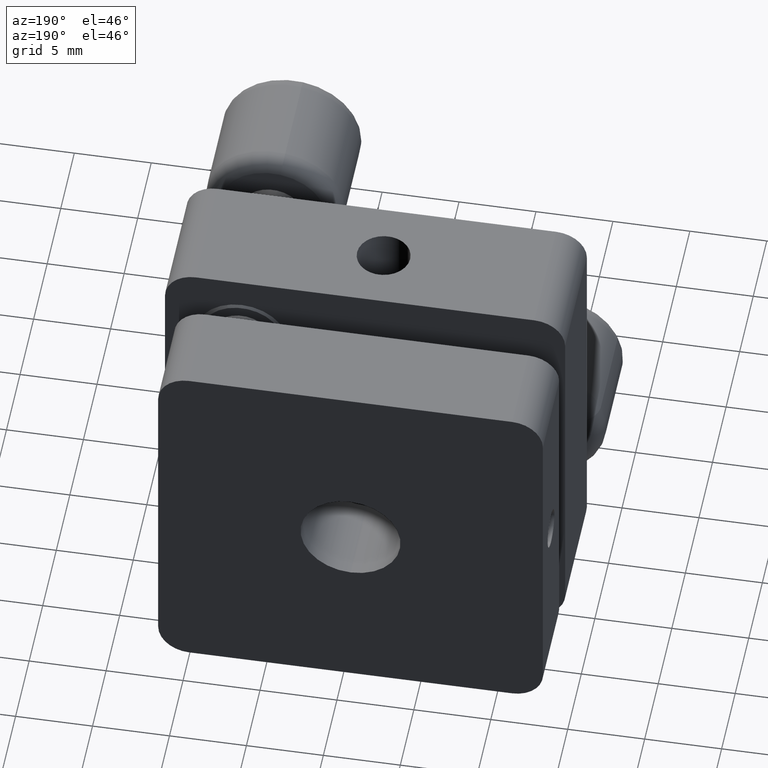
[diagram: clean part render]
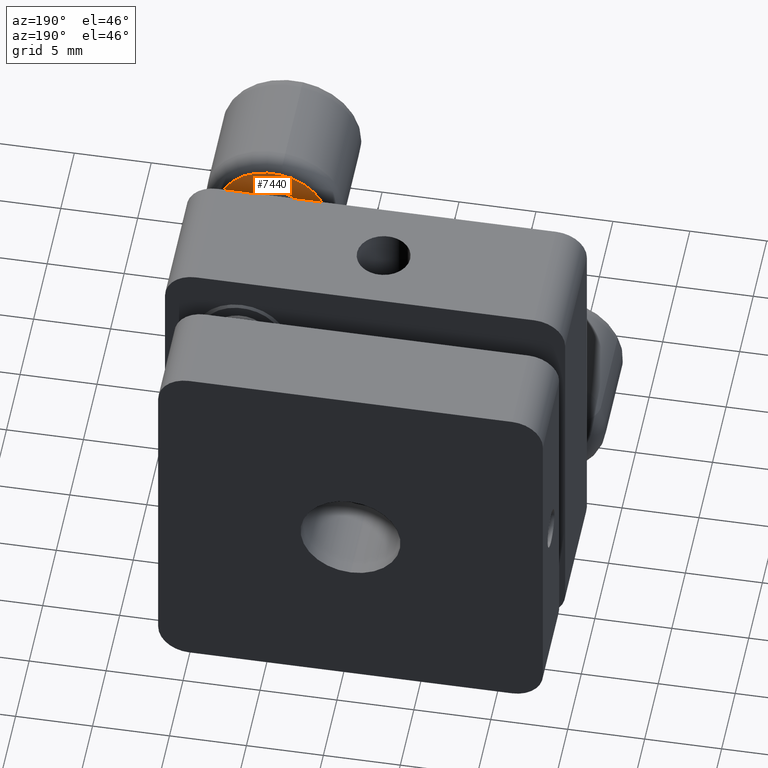
[diagram: same view with one face highlighted and labeled with its STEP entity id]
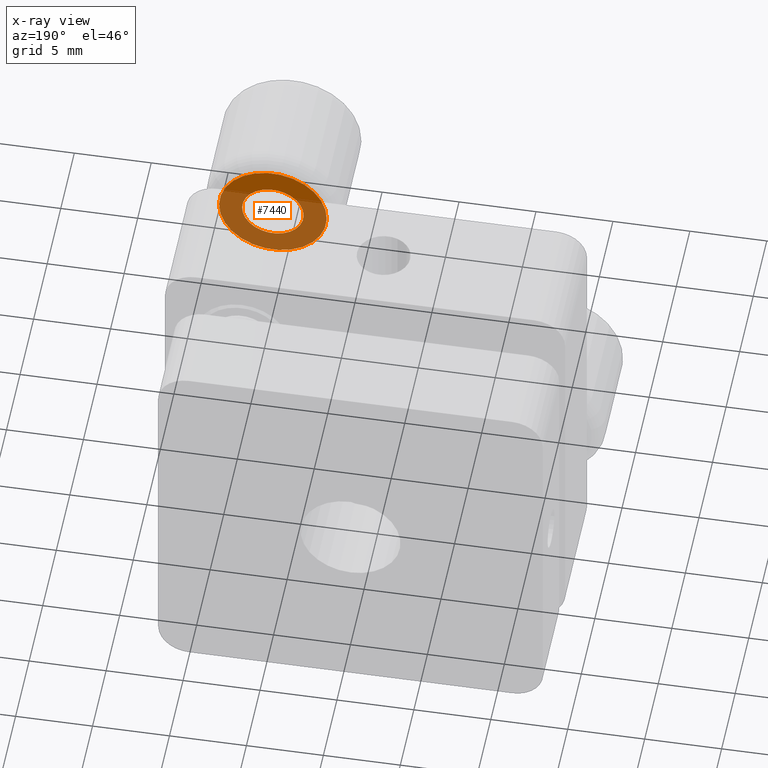
[diagram: x-ray of the same camera — body ghosted, the highlighted face saturated]
A machine part, auxiliary view. The second image highlights one B-rep face of the part: STEP entity #7440.
The next image is the same camera in x-ray: the body ghosted, the highlighted face saturated — about 66% of this face is hidden behind the body in this view.
In plain terms, the highlighted planar face has unit normal (0, 1, 0).
Its self-contained STEP definition (entity closure, byte-faithful):
#194 = AXIS2_PLACEMENT_3D ( 'NONE', #7903, #2808, #8762 ) ;
#332 = EDGE_CURVE ( 'NONE', #418, #3526, #8013, .T. ) ;
#418 = VERTEX_POINT ( 'NONE', #6206 ) ;
#420 = CIRCLE ( 'NONE', #9095, 3.500000000000006200 ) ;
#694 = EDGE_CURVE ( 'NONE', #9178, #7379, #420, .T. ) ;
#928 = AXIS2_PLACEMENT_3D ( 'NONE', #7559, #2469, #8405 ) ;
#1691 = CIRCLE ( 'NONE', #928, 2.000000000000002200 ) ;
#1994 = CARTESIAN_POINT ( 'NONE',  ( 7.774155478565033300, -15.49123321784737700, 33.50000000000004300 ) ) ;
#2309 = EDGE_LOOP ( 'NONE', ( #5864, #8565 ) ) ;
#2323 = AXIS2_PLACEMENT_3D ( 'NONE', #1994, #7930, #2835 ) ;
#2380 = DIRECTION ( 'NONE',  ( 1.238150394019946100E-016, 1.000000000000000000, 5.645428605362232300E-018 ) ) ;
#2386 = EDGE_CURVE ( 'NONE', #3526, #418, #1691, .T. ) ;
#2469 = DIRECTION ( 'NONE',  ( -1.238150394019946100E-016, -1.000000000000000000, -5.645428605362232300E-018 ) ) ;
#2808 = DIRECTION ( 'NONE',  ( -1.238150394019946100E-016, -1.000000000000000000, -5.645428605362232300E-018 ) ) ;
#2835 = DIRECTION ( 'NONE',  ( 0.1407572195371293300, 0.0000000000000000000, -0.9900441430300854800 ) ) ;
#3509 = CARTESIAN_POINT ( 'NONE',  ( 7.140747990647958500, -15.49123321784737500, 37.95519864363543400 ) ) ;
#3526 = VERTEX_POINT ( 'NONE', #7032 ) ;
#4379 = DIRECTION ( 'NONE',  ( 0.1407572195371293000, -1.183863715747114700E-017, -0.9900441430300854800 ) ) ;
#4596 = FACE_OUTER_BOUND ( 'NONE', #8913, .T. ) ;
#5093 = ORIENTED_EDGE ( 'NONE', *, *, #5703, .T. ) ;
#5703 = EDGE_CURVE ( 'NONE', #7379, #9178, #10825, .T. ) ;
#5864 = ORIENTED_EDGE ( 'NONE', *, *, #2386, .T. ) ;
#5964 = ORIENTED_EDGE ( 'NONE', *, *, #694, .T. ) ;
#6206 = CARTESIAN_POINT ( 'NONE',  ( 8.055669917639292500, -15.49123321784737500, 31.51991171393986900 ) ) ;
#6870 = FACE_BOUND ( 'NONE', #2309, .T. ) ;
#7032 = CARTESIAN_POINT ( 'NONE',  ( 7.492641039490775000, -15.49123321784737500, 35.48008828606021600 ) ) ;
#7379 = VERTEX_POINT ( 'NONE', #10158 ) ;
#7440 = ADVANCED_FACE ( 'NONE', ( #4596, #6870 ), #8557, .T. ) ;
#7462 = CARTESIAN_POINT ( 'NONE',  ( 7.774155478565033300, -15.49123321784737700, 33.50000000000004300 ) ) ;
#7559 = CARTESIAN_POINT ( 'NONE',  ( 7.774155478565033300, -15.49123321784737500, 33.50000000000004300 ) ) ;
#7903 = CARTESIAN_POINT ( 'NONE',  ( 7.774155478565033300, -15.49123321784737500, 33.50000000000004300 ) ) ;
#7930 = DIRECTION ( 'NONE',  ( 1.238150394019946100E-016, 1.000000000000000000, 5.645428605362232300E-018 ) ) ;
#8013 = CIRCLE ( 'NONE', #194, 2.000000000000002200 ) ;
#8322 = DIRECTION ( 'NONE',  ( 0.1407572195371293300, 0.0000000000000000000, -0.9900441430300854800 ) ) ;
#8405 = DIRECTION ( 'NONE',  ( -0.1407572195371292200, 0.0000000000000000000, 0.9900441430300855900 ) ) ;
#8557 = PLANE ( 'NONE',  #9152 ) ;
#8565 = ORIENTED_EDGE ( 'NONE', *, *, #332, .T. ) ;
#8762 = DIRECTION ( 'NONE',  ( -0.1407572195371292200, 0.0000000000000000000, 0.9900441430300855900 ) ) ;
#8913 = EDGE_LOOP ( 'NONE', ( #5093, #5964 ) ) ;
#9095 = AXIS2_PLACEMENT_3D ( 'NONE', #7462, #2380, #8322 ) ;
#9152 = AXIS2_PLACEMENT_3D ( 'NONE', #3509, #9449, #4379 ) ;
#9178 = VERTEX_POINT ( 'NONE', #9418 ) ;
#9418 = CARTESIAN_POINT ( 'NONE',  ( 7.281505210185073000, -15.49123321784737500, 36.96515450060535100 ) ) ;
#9449 = DIRECTION ( 'NONE',  ( 1.238150394019945400E-016, 1.000000000000000000, 5.645428605362567400E-018 ) ) ;
#10158 = CARTESIAN_POINT ( 'NONE',  ( 8.266805746944980300, -15.49123321784737500, 30.03484549939473800 ) ) ;
#10825 = CIRCLE ( 'NONE', #2323, 3.500000000000006200 ) ;